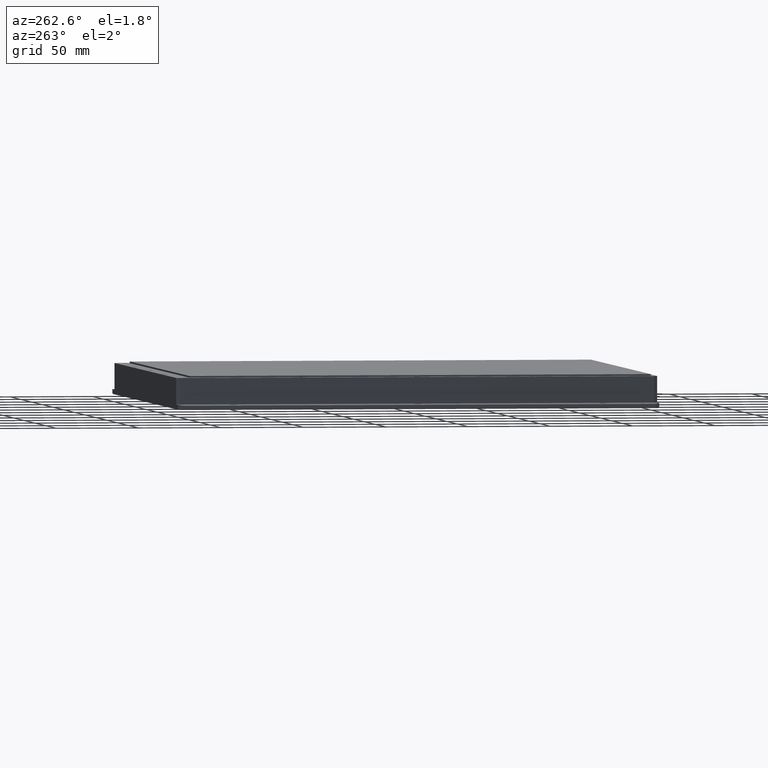
[diagram: clean part render]
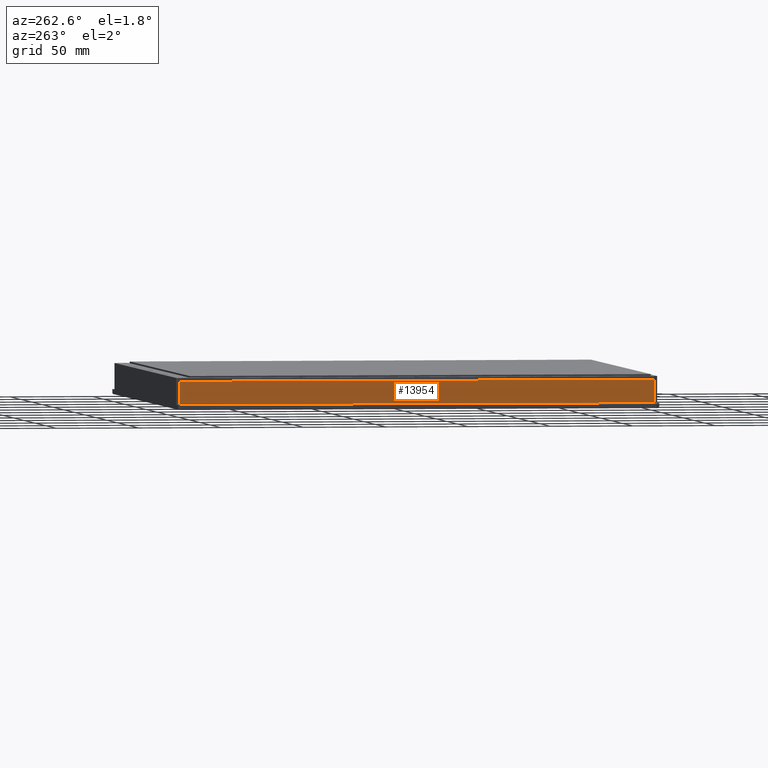
[diagram: same view with one face highlighted and labeled with its STEP entity id]
A machine part, auxiliary view. The second image highlights one B-rep face of the part: STEP entity #13954.
In plain terms, the highlighted planar face has unit normal (1, 0, -0).
Its self-contained STEP definition (entity closure, byte-faithful):
#20 = CARTESIAN_POINT ( 'NONE',  ( -113.0806771263418400, 159.2698045692266900, -7.000000000028194300 ) ) ;
#407 = EDGE_LOOP ( 'NONE', ( #21063, #7755, #9409, #691 ) ) ;
#691 = ORIENTED_EDGE ( 'NONE', *, *, #14558, .F. ) ;
#1014 = EDGE_CURVE ( 'NONE', #11278, #22101, #7937, .T. ) ;
#1114 = LINE ( 'NONE', #13986, #19808 ) ;
#1739 = EDGE_CURVE ( 'NONE', #11818, #20441, #1114, .T. ) ;
#3361 = DIRECTION ( 'NONE',  ( -0.0000000000000000000, 0.0000000000000000000, -1.000000000000000000 ) ) ;
#7755 = ORIENTED_EDGE ( 'NONE', *, *, #10664, .F. ) ;
#7937 = LINE ( 'NONE', #18268, #12245 ) ;
#9409 = ORIENTED_EDGE ( 'NONE', *, *, #1014, .F. ) ;
#9704 = VECTOR ( 'NONE', #13896, 1000.000000000000000 ) ;
#10156 = VECTOR ( 'NONE', #23867, 1000.000000000000000 ) ;
#10408 = DIRECTION ( 'NONE',  ( 0.0000000000000000000, -0.0000000000000000000, 1.000000000000000000 ) ) ;
#10662 = CARTESIAN_POINT ( 'NONE',  ( -113.0806771263418400, 159.2698045692266900, 6.999999999971805700 ) ) ;
#10664 = EDGE_CURVE ( 'NONE', #22101, #20441, #14581, .T. ) ;
#11278 = VERTEX_POINT ( 'NONE', #14147 ) ;
#11818 = VERTEX_POINT ( 'NONE', #16426 ) ;
#12245 = VECTOR ( 'NONE', #21776, 1000.000000000000000 ) ;
#13124 = CARTESIAN_POINT ( 'NONE',  ( -113.0806771263418400, -130.7301954307733400, 6.999999999971805700 ) ) ;
#13896 = DIRECTION ( 'NONE',  ( 0.0000000000000000000, -1.000000000000000000, -0.0000000000000000000 ) ) ;
#13954 = ADVANCED_FACE ( 'NONE', ( #23792 ), #23745, .F. ) ;
#13986 = CARTESIAN_POINT ( 'NONE',  ( -113.0806771263418400, -130.7301954307733600, 6.999999999971805700 ) ) ;
#14147 = CARTESIAN_POINT ( 'NONE',  ( -113.0806771263418400, 157.2698045692267200, -7.000000000028197900 ) ) ;
#14558 = EDGE_CURVE ( 'NONE', #11818, #11278, #15028, .T. ) ;
#14581 = LINE ( 'NONE', #21429, #9704 ) ;
#15028 = LINE ( 'NONE', #20, #10156 ) ;
#16426 = CARTESIAN_POINT ( 'NONE',  ( -113.0806771263418400, -130.7301954307733600, -7.000000000028197000 ) ) ;
#16680 = CARTESIAN_POINT ( 'NONE',  ( -113.0806771263418400, 157.2698045692267200, 6.999999999971805700 ) ) ;
#18268 = CARTESIAN_POINT ( 'NONE',  ( -113.0806771263418400, 157.2698045692267200, 6.999999999971805700 ) ) ;
#19721 = AXIS2_PLACEMENT_3D ( 'NONE', #10662, #23657, #3361 ) ;
#19808 = VECTOR ( 'NONE', #10408, 1000.000000000000000 ) ;
#20441 = VERTEX_POINT ( 'NONE', #13124 ) ;
#21063 = ORIENTED_EDGE ( 'NONE', *, *, #1739, .T. ) ;
#21429 = CARTESIAN_POINT ( 'NONE',  ( -113.0806771263418300, -132.7301954307733600, 6.999999999971805700 ) ) ;
#21776 = DIRECTION ( 'NONE',  ( 0.0000000000000000000, -0.0000000000000000000, 1.000000000000000000 ) ) ;
#22101 = VERTEX_POINT ( 'NONE', #16680 ) ;
#23657 = DIRECTION ( 'NONE',  ( 1.000000000000000000, 0.0000000000000000000, -0.0000000000000000000 ) ) ;
#23745 = PLANE ( 'NONE',  #19721 ) ;
#23792 = FACE_OUTER_BOUND ( 'NONE', #407, .T. ) ;
#23867 = DIRECTION ( 'NONE',  ( 0.0000000000000000000, 1.000000000000000000, 0.0000000000000000000 ) ) ;